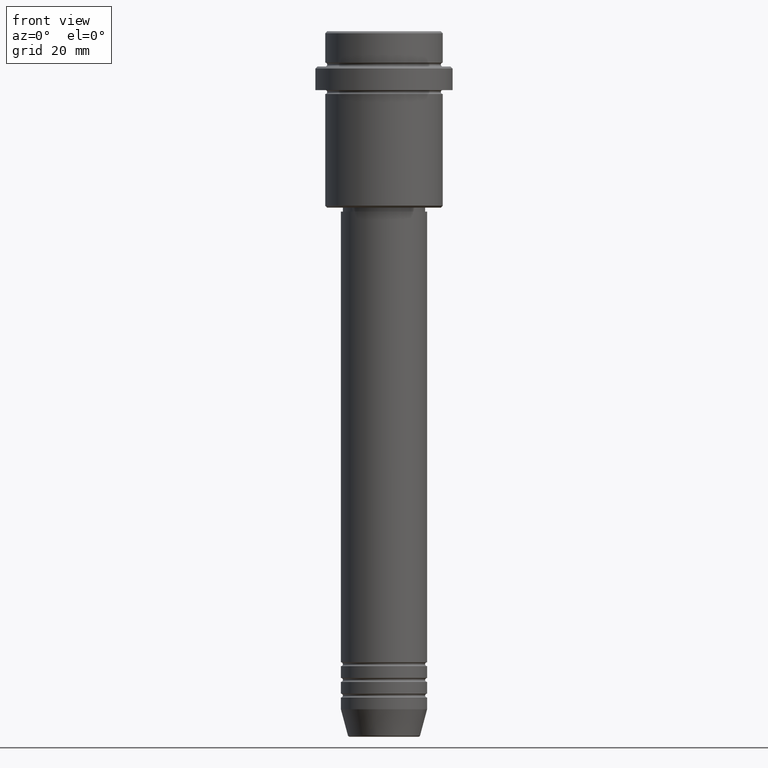
[diagram: clean part render]
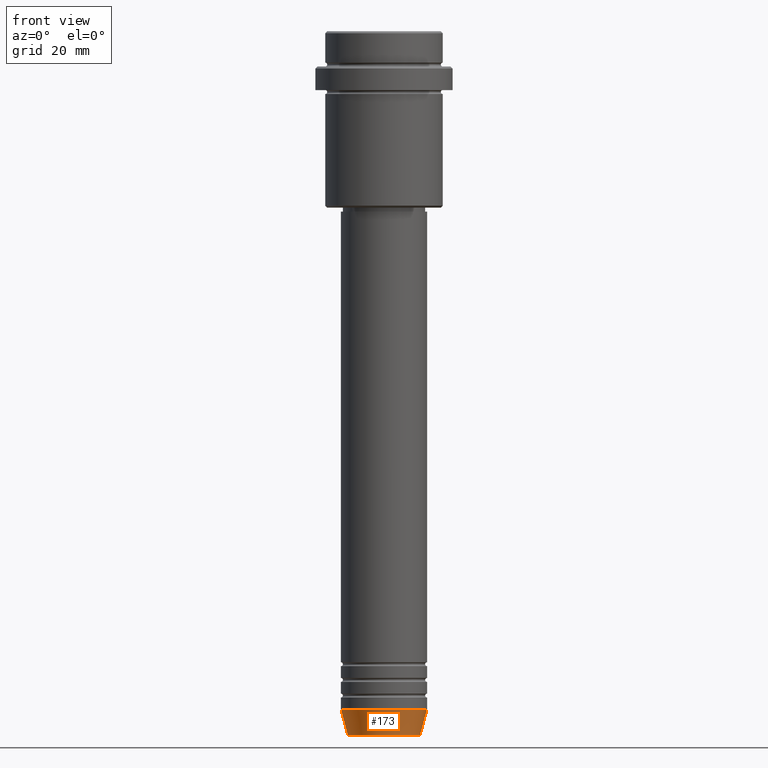
[diagram: same view with one face highlighted and labeled with its STEP entity id]
A machine part, front view. The second image highlights one B-rep face of the part: STEP entity #173.
In plain terms, the highlighted conical surface has half-angle 15 deg.
Its self-contained STEP definition (entity closure, byte-faithful):
#22 = DIRECTION ( 'NONE',  ( -0.000000000000000000, -0.000000000000000000, 1.000000000000000000 ) ) ;
#83 = DIRECTION ( 'NONE',  ( -0.2588190451025213501, 3.169619151431772337E-17, 0.9659258262890680902 ) ) ;
#106 = EDGE_LOOP ( 'NONE', ( #915, #573, #892, #792 ) ) ;
#114 = CARTESIAN_POINT ( 'NONE',  ( -11.00000000000000000, 1.347111479062088405E-15, -173.0000000000000284 ) ) ;
#126 = CARTESIAN_POINT ( 'NONE',  ( 0.000000000000000000, 0.000000000000000000, -179.6294095225512422 ) ) ;
#173 = ADVANCED_FACE ( 'NONE', ( #728 ), #277, .T. ) ;
#189 = DIRECTION ( 'NONE',  ( 1.000000000000000000, 0.000000000000000000, 0.000000000000000000 ) ) ;
#248 = VECTOR ( 'NONE', #83, 1000.000000000000000 ) ;
#259 = VERTEX_POINT ( 'NONE', #114 ) ;
#277 = CONICAL_SURFACE ( 'NONE', #1207, 11.00000000000000000, 0.2617993877991500740 ) ;
#296 = EDGE_CURVE ( 'NONE', #992, #1136, #1214, .T. ) ;
#315 = DIRECTION ( 'NONE',  ( 0.2588190451025213501, 0.000000000000000000, 0.9659258262890680902 ) ) ;
#370 = VERTEX_POINT ( 'NONE', #1236 ) ;
#424 = DIRECTION ( 'NONE',  ( 1.000000000000000000, 0.000000000000000000, 0.000000000000000000 ) ) ;
#558 = DIRECTION ( 'NONE',  ( 1.000000000000000000, 0.000000000000000000, 0.000000000000000000 ) ) ;
#573 = ORIENTED_EDGE ( 'NONE', *, *, #967, .T. ) ;
#599 = CARTESIAN_POINT ( 'NONE',  ( 9.223655072137194821, 0.000000000000000000, -179.6294095225512422 ) ) ;
#655 = CARTESIAN_POINT ( 'NONE',  ( 11.00000000000000000, 0.000000000000000000, -173.0000000000000284 ) ) ;
#671 = VECTOR ( 'NONE', #315, 1000.000000000000000 ) ;
#728 = FACE_OUTER_BOUND ( 'NONE', #106, .T. ) ;
#792 = ORIENTED_EDGE ( 'NONE', *, *, #895, .F. ) ;
#852 = EDGE_CURVE ( 'NONE', #370, #259, #1172, .T. ) ;
#892 = ORIENTED_EDGE ( 'NONE', *, *, #296, .T. ) ;
#895 = EDGE_CURVE ( 'NONE', #259, #1136, #1415, .T. ) ;
#915 = ORIENTED_EDGE ( 'NONE', *, *, #852, .F. ) ;
#940 = CARTESIAN_POINT ( 'NONE',  ( 0.000000000000000000, 0.000000000000000000, -173.0000000000000284 ) ) ;
#967 = EDGE_CURVE ( 'NONE', #370, #992, #1323, .T. ) ;
#992 = VERTEX_POINT ( 'NONE', #599 ) ;
#1021 = AXIS2_PLACEMENT_3D ( 'NONE', #1384, #1406, #424 ) ;
#1067 = CARTESIAN_POINT ( 'NONE',  ( -11.00000000000000000, 1.347111479062088405E-15, -173.0000000000000284 ) ) ;
#1136 = VERTEX_POINT ( 'NONE', #655 ) ;
#1139 = DIRECTION ( 'NONE',  ( -0.000000000000000000, -0.000000000000000000, 1.000000000000000000 ) ) ;
#1172 = LINE ( 'NONE', #1067, #248 ) ;
#1207 = AXIS2_PLACEMENT_3D ( 'NONE', #940, #1139, #189 ) ;
#1214 = LINE ( 'NONE', #1299, #671 ) ;
#1236 = CARTESIAN_POINT ( 'NONE',  ( -9.223655072137194821, 1.238341722557647596E-15, -179.6294095225512422 ) ) ;
#1281 = AXIS2_PLACEMENT_3D ( 'NONE', #126, #22, #558 ) ;
#1299 = CARTESIAN_POINT ( 'NONE',  ( 11.00000000000000000, 0.000000000000000000, -173.0000000000000284 ) ) ;
#1323 = CIRCLE ( 'NONE', #1281, 9.223655072137194821 ) ;
#1384 = CARTESIAN_POINT ( 'NONE',  ( 0.000000000000000000, 0.000000000000000000, -173.0000000000000284 ) ) ;
#1406 = DIRECTION ( 'NONE',  ( -0.000000000000000000, -0.000000000000000000, 1.000000000000000000 ) ) ;
#1415 = CIRCLE ( 'NONE', #1021, 11.00000000000000000 ) ;